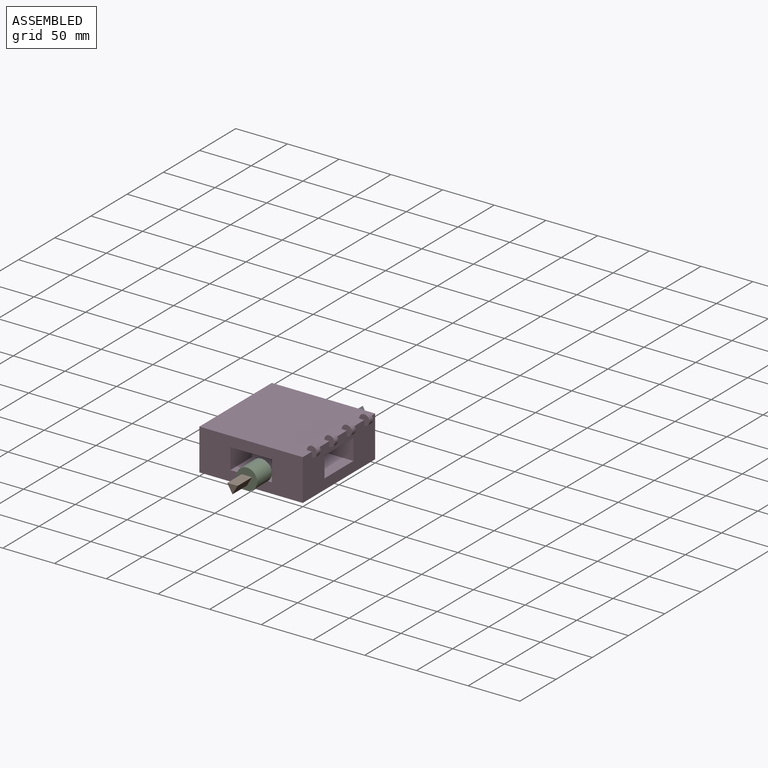
[diagram: assembled view]
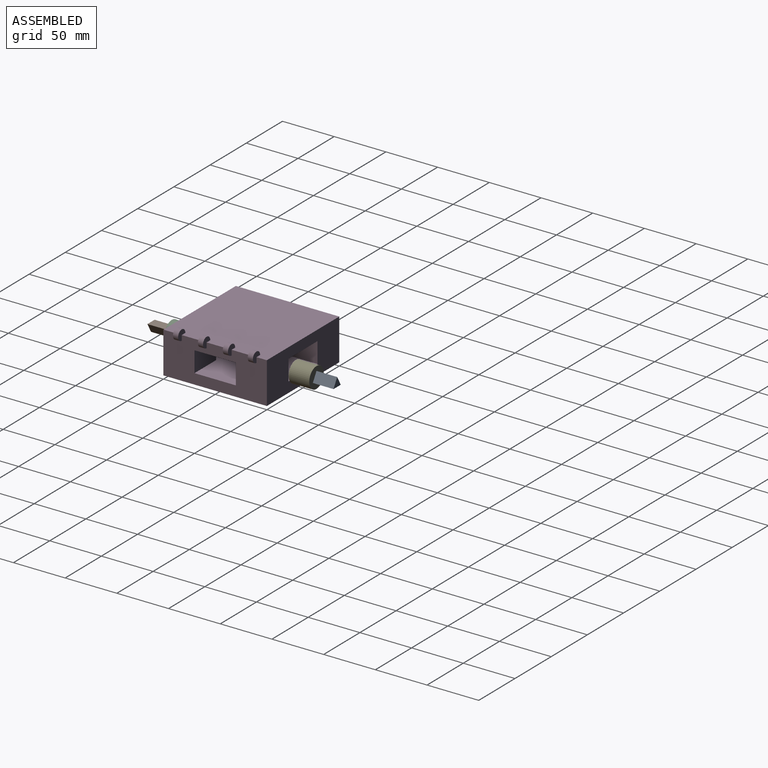
[diagram: assembled view, second angle]
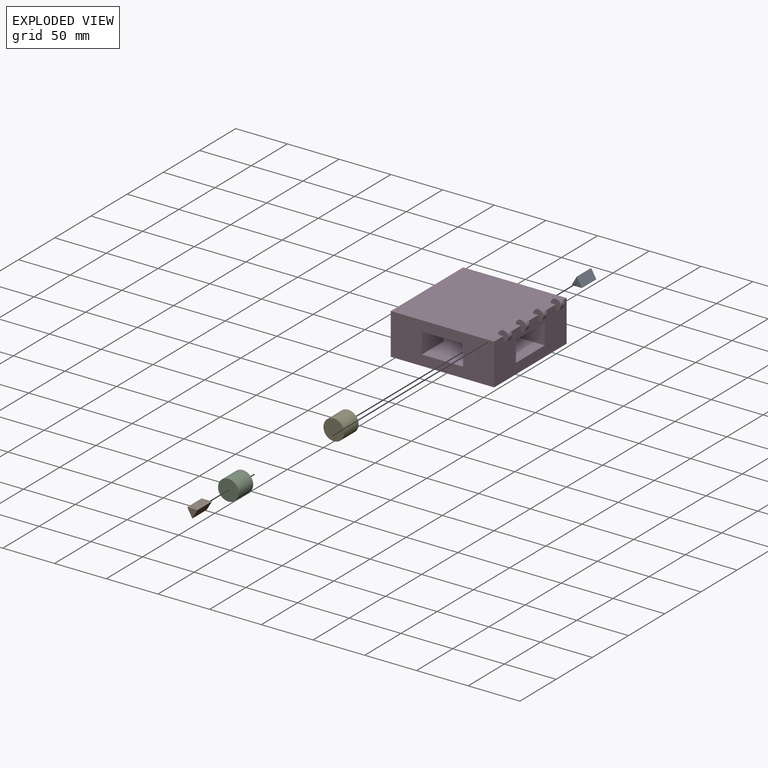
[diagram: exploded view]
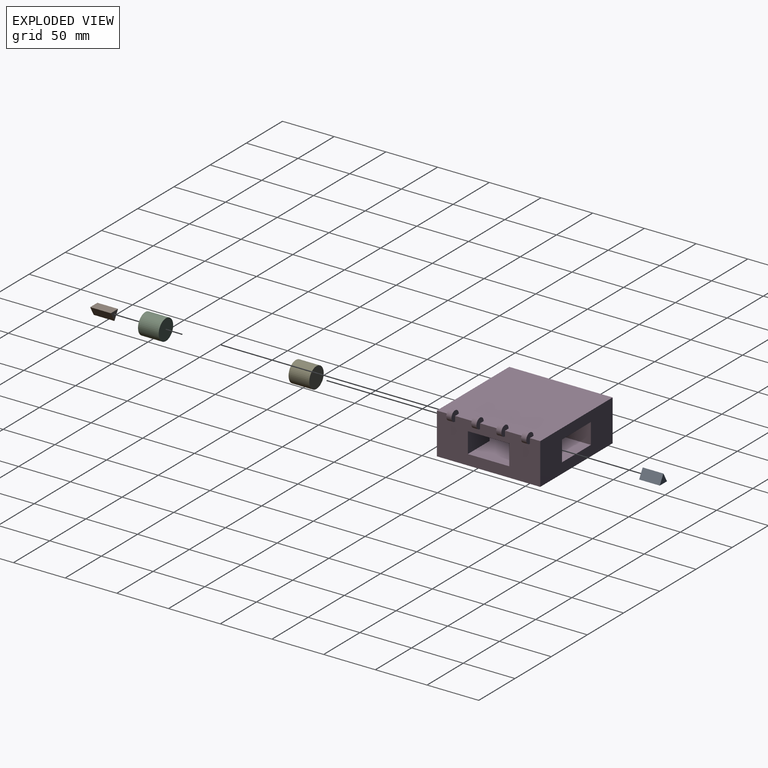
[diagram: exploded view, second angle]
ASSEMBLY  parts=5 mates=4
PART A: 5 faces, bbox 10x8.7x20 mm
  f0: plane 20x8.66mm, normal (0.87,0.5,0), area 200mm2, adj f1,f2,f3,f4
  f1: plane 20x8.66mm, normal (-0.87,0.5,0), area 200mm2, adj f0,f2,f3,f4
  f2: plane 20x10mm, normal (0,-1,0), area 200mm2, adj f0,f1,f3,f4
  f3: plane 10x8.66mm, normal (0,0,1), area 43.3mm2, adj f0,f1,f2
  f4: plane 10x8.66mm, normal (0,0,-1), area 43.3mm2, adj f0,f1,f2
PART B: same geometry as A
PART C: 3 faces, bbox 20x20x20 mm
  f0: cylinder r=10mm len=20mm, axis (0,0,-1), area 1256.6mm2, adj f1,f2
  f1: plane 20x20mm, normal (0,0,1), area 314.2mm2, adj f0
  f2: plane 20x20mm, normal (0,0,-1), area 314.2mm2, adj f0
PART D: 28 faces, bbox 105x100x45 mm
  f0: plane 100x100mm, normal (0,0,-1), area 6400mm2, adj f1,f2,f3,f4,f20,f21,f22,f23
  f1: plane 100x40mm, normal (0,1,0), area 3200mm2, adj f0,f2,f4,f5,f18,f19,f20,f23
  f2: plane 100x40mm, normal (-1,0,0), area 3200mm2, adj f0,f1,f3,f5,f18,f19,f21,f25
  f3: plane 100x40mm, normal (0,-1,0), area 3200mm2, adj f0,f2,f4,f5,f18,f19,f24,f26
  f4: plane 100x40mm, normal (1,0,0), area 3100mm2, adj f0,f1,f3,f5,f6,f7,f8,f9
  f5: plane 100x100mm, normal (0,0,1), area 9900mm2, adj f1,f2,f3,f4,f6,f7,f8,f9
  f6: cylinder r=5mm len=10mm, axis (0,1,0), area 117.8mm2, adj f4,f5,f7,f8
  f7: plane 10x10mm, normal (0,-1,0), area 58.9mm2, adj f4,f5,f6
  f8: plane 10x10mm, normal (0,1,0), area 58.9mm2, adj f4,f5,f6
  f9: cylinder r=5mm len=10mm, axis (0,1,0), area 117.8mm2, adj f4,f5,f10,f11
  f10: plane 10x10mm, normal (0,-1,0), area 58.9mm2, adj f4,f5,f9
  f11: plane 10x10mm, normal (0,1,0), area 58.9mm2, adj f4,f5,f9
  f12: cylinder r=5mm len=10mm, axis (0,1,0), area 117.8mm2, adj f4,f5,f13,f14
  f13: plane 10x10mm, normal (0,-1,0), area 58.9mm2, adj f4,f5,f12
  f14: plane 10x10mm, normal (0,1,0), area 58.9mm2, adj f4,f5,f12
  f15: cylinder r=5mm len=10mm, axis (0,1,0), area 117.8mm2, adj f4,f5,f16,f17
  f16: plane 10x10mm, normal (0,-1,0), area 58.9mm2, adj f4,f5,f15
  f17: plane 10x10mm, normal (0,1,0), area 58.9mm2, adj f4,f5,f15
  f18: plane 100x100mm, normal (0,0,1), area 6400mm2, adj f1,f2,f3,f4,f20,f21,f22,f23
  f19: plane 100x100mm, normal (0,0,-1), area 10000mm2, adj f1,f2,f3,f4
  f20: plane 30x20mm, normal (1,0,0), area 600mm2, adj f0,f1,f18,f21
  f21: plane 30x20mm, normal (0,-1,0), area 600mm2, adj f0,f2,f18,f20
  f22: plane 30x20mm, normal (0,-1,0), area 600mm2, adj f0,f4,f18,f23
  f23: plane 30x20mm, normal (-1,0,0), area 600mm2, adj f0,f1,f18,f22
  f24: plane 30x20mm, normal (1,0,0), area 600mm2, adj f0,f3,f18,f25
  f25: plane 30x20mm, normal (0,1,0), area 600mm2, adj f0,f2,f18,f24
  f26: plane 30x20mm, normal (-1,0,0), area 600mm2, adj f0,f3,f18,f27
  f27: plane 30x20mm, normal (0,1,0), area 600mm2, adj f0,f4,f18,f26
PART E: same geometry as C
PLACE A rot(axis=(0,0.71,0.71),180deg) t=(10,70,15)mm
PLACE B rot(axis=(0,0.71,-0.71),180deg) t=(10,-70,17.9)mm
PLACE C rot(axis=(-0.58,-0.58,-0.58),120deg) t=(10,-70,17.9)mm
PLACE D at identity fixed
PLACE E rot(axis=(0.58,-0.58,0.58),120deg) t=(10,70,15)mm
MATE fastened A.f4 <-> E.f0  axis (0,-1,0) through (10,70,15)mm
MATE planar E.f0 <-> D.f1  axis (0,1,0) through (10,50,15)mm
MATE fastened C.f0 <-> B.f4  axis (0,-1,0) through (10,-70,17.9)mm
MATE planar C.f0 <-> D.f3  axis (0,1,0) through (10,-50,17.9)mm
